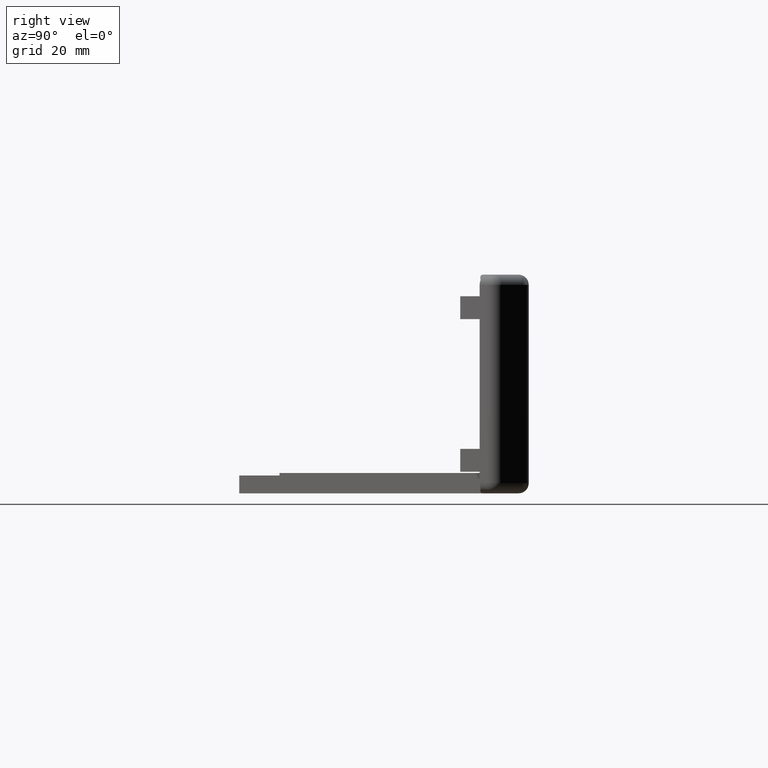
[diagram: clean part render]
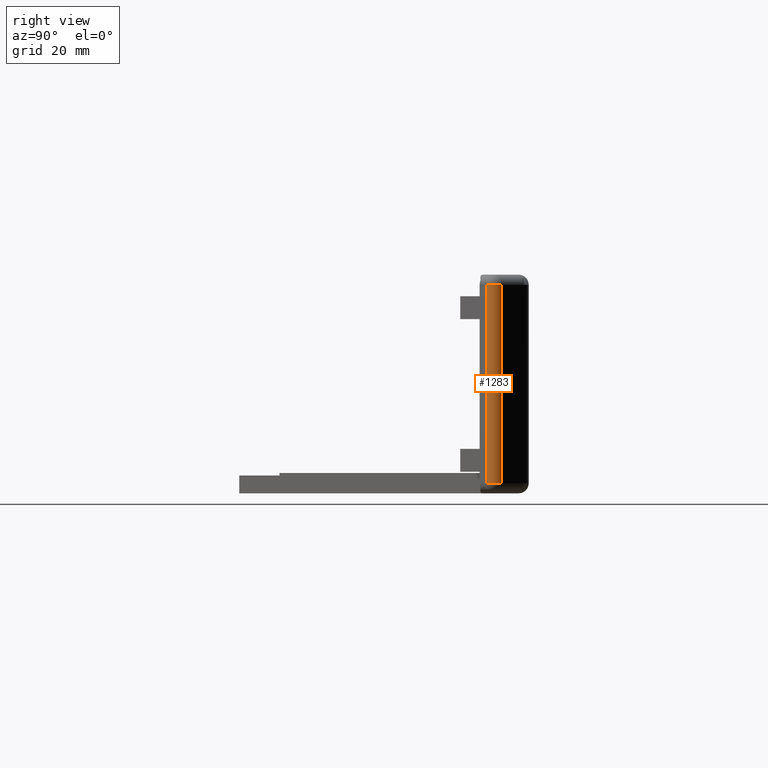
[diagram: same view with one face highlighted and labeled with its STEP entity id]
A machine part, right view. The second image highlights one B-rep face of the part: STEP entity #1283.
In plain terms, the highlighted cylindrical surface (edge-blend (fillet) strip) has radius 2 mm, axis along (0, 0, 1).
Its self-contained STEP definition (entity closure, byte-faithful):
#69=LINE('',#1914,#208);
#70=LINE('',#1915,#209);
#208=VECTOR('',#1523,1000.);
#209=VECTOR('',#1524,1000.);
#347=CYLINDRICAL_SURFACE('',#1384,2.);
#372=FACE_OUTER_BOUND('',#447,.T.);
#447=EDGE_LOOP('',(#893,#894,#895,#896));
#520=CIRCLE('',#1377,2.);
#525=CIRCLE('',#1383,2.);
#570=VERTEX_POINT('',#1900);
#571=VERTEX_POINT('',#1901);
#573=VERTEX_POINT('',#1907);
#575=VERTEX_POINT('',#1910);
#692=EDGE_CURVE('',#570,#571,#520,.T.);
#697=EDGE_CURVE('',#573,#575,#525,.T.);
#698=EDGE_CURVE('',#570,#575,#69,.T.);
#699=EDGE_CURVE('',#573,#571,#70,.T.);
#893=ORIENTED_EDGE('',*,*,#697,.T.);
#894=ORIENTED_EDGE('',*,*,#698,.F.);
#895=ORIENTED_EDGE('',*,*,#692,.T.);
#896=ORIENTED_EDGE('',*,*,#699,.F.);
#1283=ADVANCED_FACE('',(#372),#347,.T.);
#1377=AXIS2_PLACEMENT_3D('',#1902,#1507,#1508);
#1383=AXIS2_PLACEMENT_3D('',#1912,#1519,#1520);
#1384=AXIS2_PLACEMENT_3D('',#1913,#1521,#1522);
#1507=DIRECTION('center_axis',(0.,0.,-1.));
#1508=DIRECTION('ref_axis',(1.,0.,0.));
#1519=DIRECTION('center_axis',(0.,0.,1.));
#1520=DIRECTION('ref_axis',(1.,0.,0.));
#1521=DIRECTION('center_axis',(0.,0.,1.));
#1522=DIRECTION('ref_axis',(1.,0.,0.));
#1523=DIRECTION('',(0.,0.,-1.));
#1524=DIRECTION('',(0.,0.,1.));
#1900=CARTESIAN_POINT('',(62.3606601717791,-1.40380592228648,19.5));
#1901=CARTESIAN_POINT('',(62.3606601717792,-4.23223304703269,19.5));
#1902=CARTESIAN_POINT('Origin',(60.9464466094061,-2.8180194846596,19.5));
#1907=CARTESIAN_POINT('',(62.3606601717792,-4.23223304703269,-19.5));
#1910=CARTESIAN_POINT('',(62.3606601717791,-1.40380592228648,-19.5));
#1912=CARTESIAN_POINT('Origin',(60.9464466094061,-2.8180194846596,-19.5));
#1913=CARTESIAN_POINT('Origin',(60.9464466094061,-2.8180194846596,21.5));
#1914=CARTESIAN_POINT('',(62.3606601717791,-1.40380592228648,21.5));
#1915=CARTESIAN_POINT('',(62.3606601717792,-4.23223304703269,21.5));